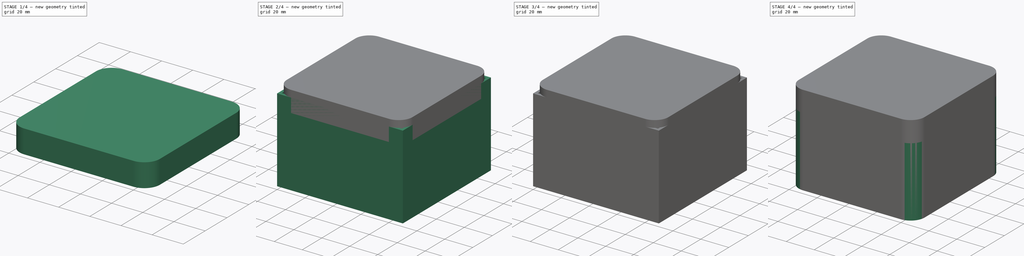
[diagram: build sequence overview — one tinted view per stage of 4, left to right]
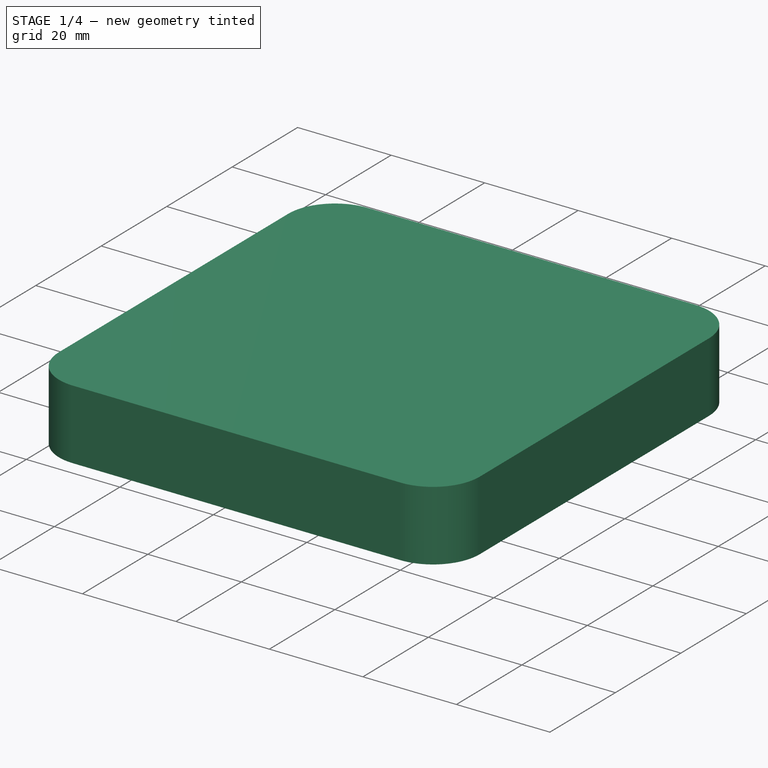
[diagram: stage 1 of 4 — iso view after this stage's code; geometry added in this stage tinted green]
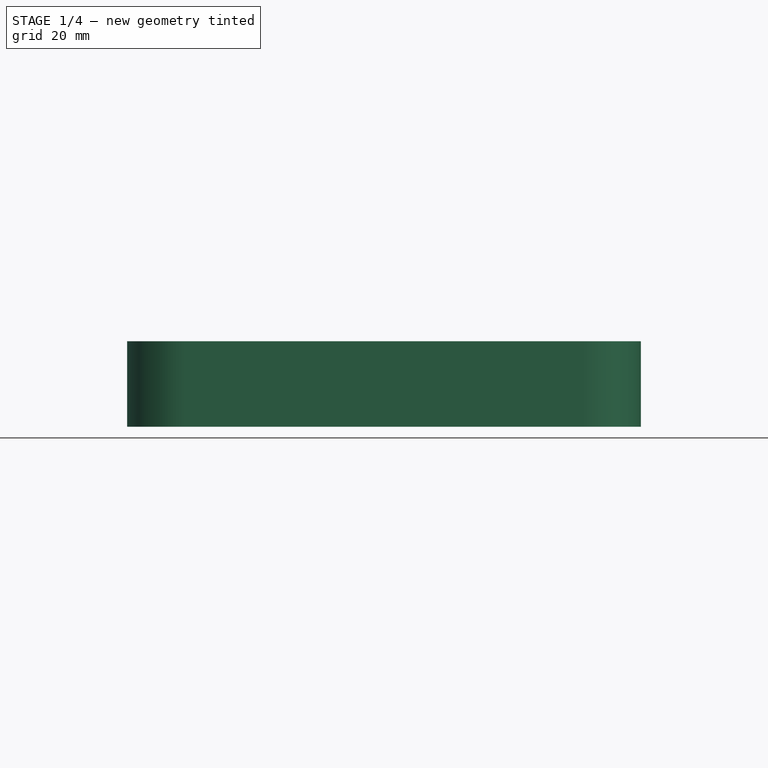
[diagram: stage 1 of 4 — front view after this stage's code; geometry added in this stage tinted green]
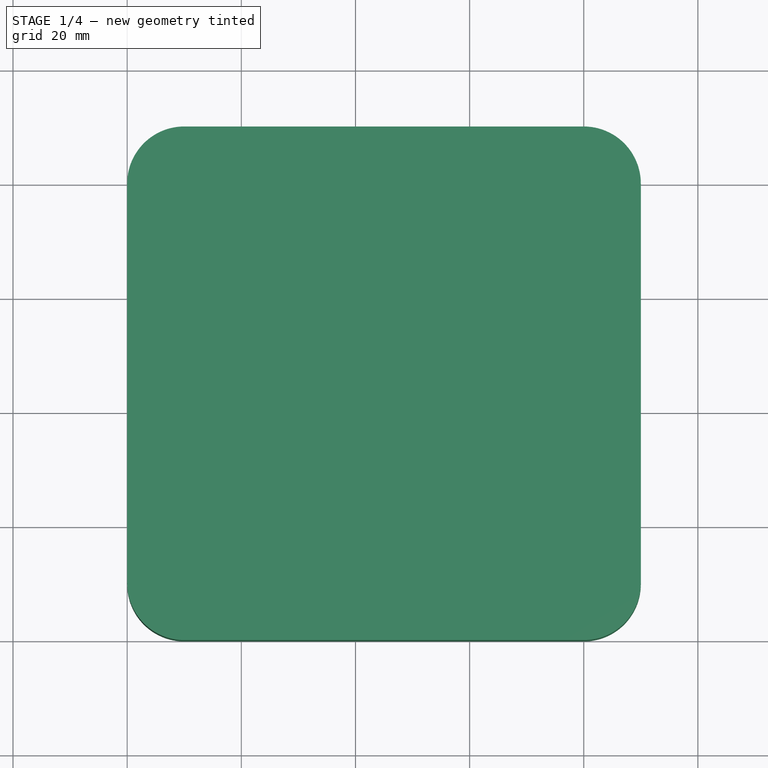
[diagram: stage 1 of 4 — top view after this stage's code; geometry added in this stage tinted green]
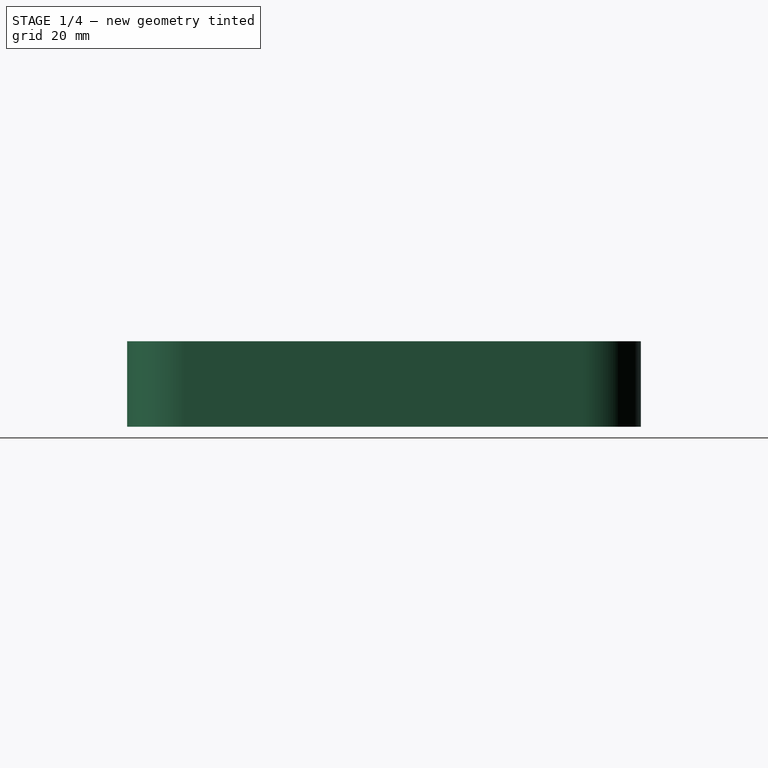
[diagram: stage 1 of 4 — right view after this stage's code; geometry added in this stage tinted green]
FCSTD DOCUMENT  (FreeCAD 0.18R16131 (Git))
Label: Caja QX65
License: All rights reserved
LicenseURL: http://en.wikipedia.org/wiki/All_rights_reserved
objects: Sketcher::SketchObject×4, PartDesign::Pocket×4, PartDesign::AdditiveBox×2, PartDesign::Fillet×2, PartDesign::Body×2, App::Part×2, PartDesign::SubtractiveBox×1, PartDesign::Thickness×1
note: 23 computed .brp shape members not serialized (recipe doc carries the construction recipe); baked Part::Feature solids carry a one-line shape summary decoded from their .brp

FEATURE [PartDesign::Body] Body
  Group = -> [Box,Sketch,Sketch001,Box001,Pocket,Pocket001,Sketch002,Pocket002,Sketch003,Pocket003,Fillet]
  Origin = -> Origin001
  Tip = -> Fillet
FEATURE [App::Part] Part  label="Caja cx65"
  Group = -> [Body]
  Origin = -> Origin
FEATURE [PartDesign::AdditiveBox] Box002
  AttacherType = Attacher::AttachEngine3D
  AttachmentOffset = pos=(0,0,50) rot=(0,0,1;0rad)
  Height = 15
  Length = 90
  MapMode = 2
  Placement = pos=(0,0,50) rot=(0,0,1;0rad)
  Support = -> [X_Axis003]
  Width = 90
FEATURE [PartDesign::Fillet] Fillet001
  Base = -> Box002 [Edge1,Edge5,Edge7,Edge3]
  BaseFeature = -> Box002
  Placement = pos=(0,0,50) rot=(0,0,1;0rad)
  Radius = 10
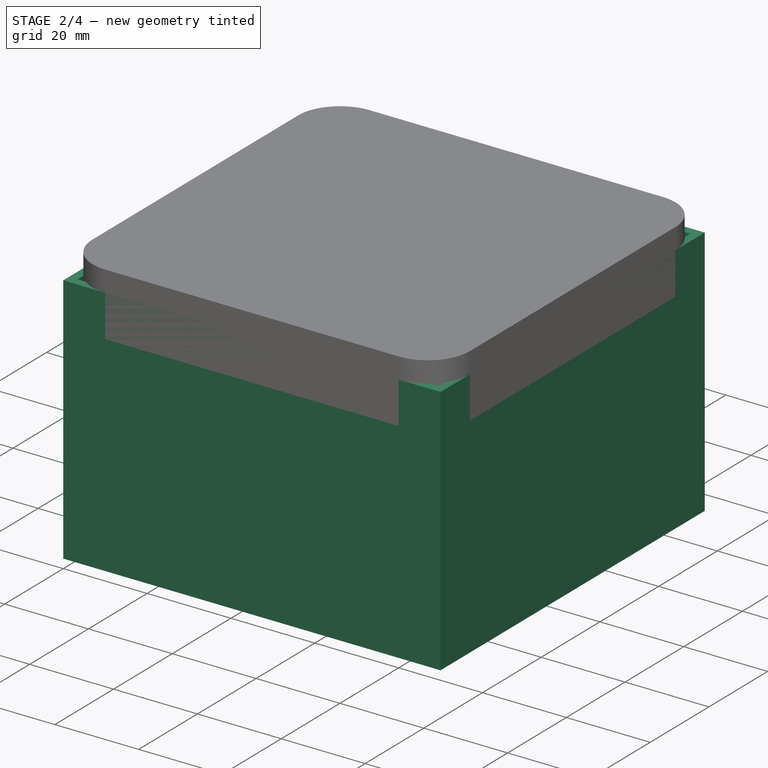
[diagram: stage 2 of 4 — iso view after this stage's code; geometry added in this stage tinted green]
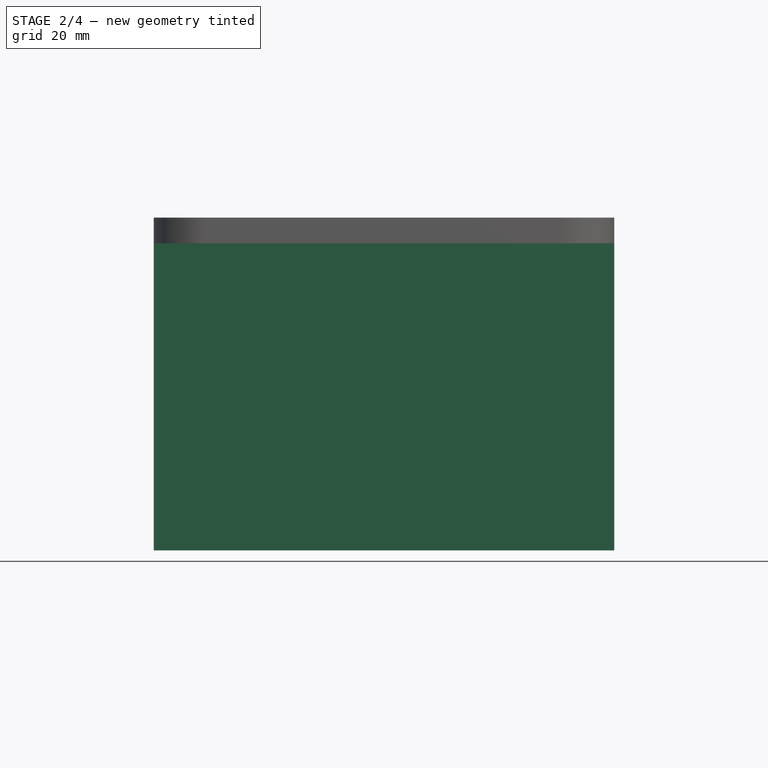
[diagram: stage 2 of 4 — front view after this stage's code; geometry added in this stage tinted green]
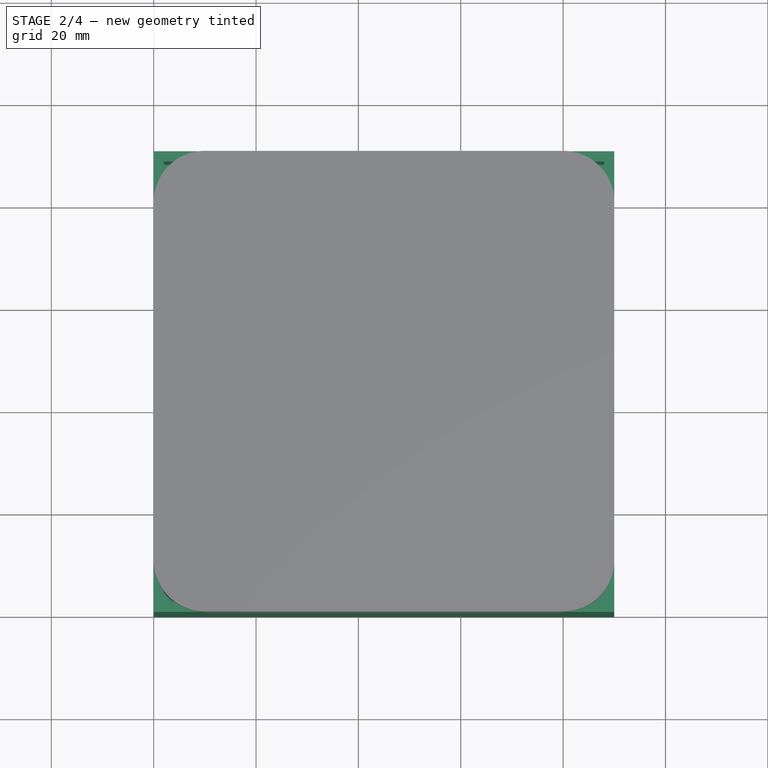
[diagram: stage 2 of 4 — top view after this stage's code; geometry added in this stage tinted green]
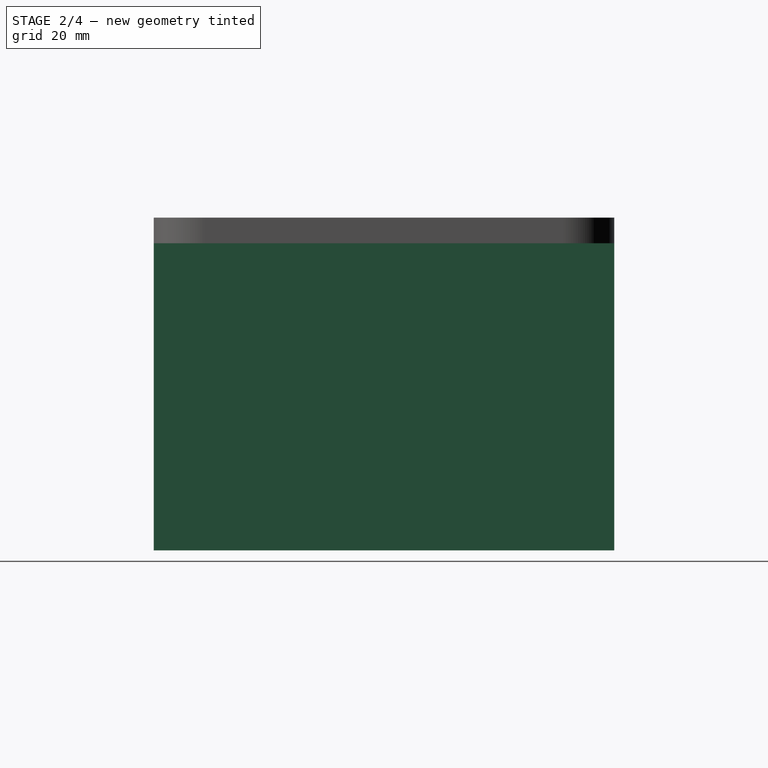
[diagram: stage 2 of 4 — right view after this stage's code; geometry added in this stage tinted green]
FEATURE [PartDesign::AdditiveBox] Box
  AttacherType = Attacher::AttachEngine3D
  Height = 60
  Length = 90
  Width = 90
FEATURE [PartDesign::SubtractiveBox] Box001
  AttacherType = Attacher::AttachEngine3D
  AttachmentOffset = pos=(2,2,-36) rot=(0,0,1;0rad)
  BaseFeature = -> Box
  Height = 36
  Length = 86
  MapMode = 5
  Placement = pos=(2,2,24) rot=(0,0,1;0rad)
  Support = -> [Box]
  Width = 86
FEATURE [PartDesign::Thickness] Thickness
  Base = -> Fillet001 [Face5]
  BaseFeature = -> Fillet001
  Join = 0
  Mode = 0
  Reversed = true
  Value = 0.5
FEATURE [PartDesign::Body] Body001
  Group = -> [Box002,Fillet001,Thickness]
  Origin = -> Origin003
  Placement = pos=(0,0,30) rot=(0,0,1;0rad)
  Tip = -> Thickness
FEATURE [App::Part] Part001  label="Tapa"
  Group = -> [Body001]
  Origin = -> Origin002
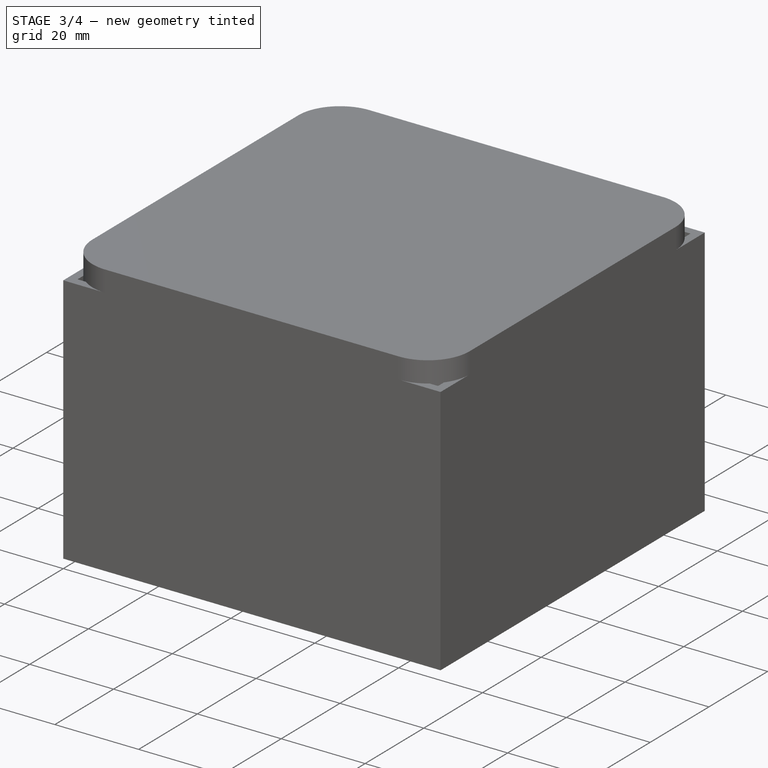
[diagram: stage 3 of 4 — iso view after this stage's code; geometry added in this stage tinted green]
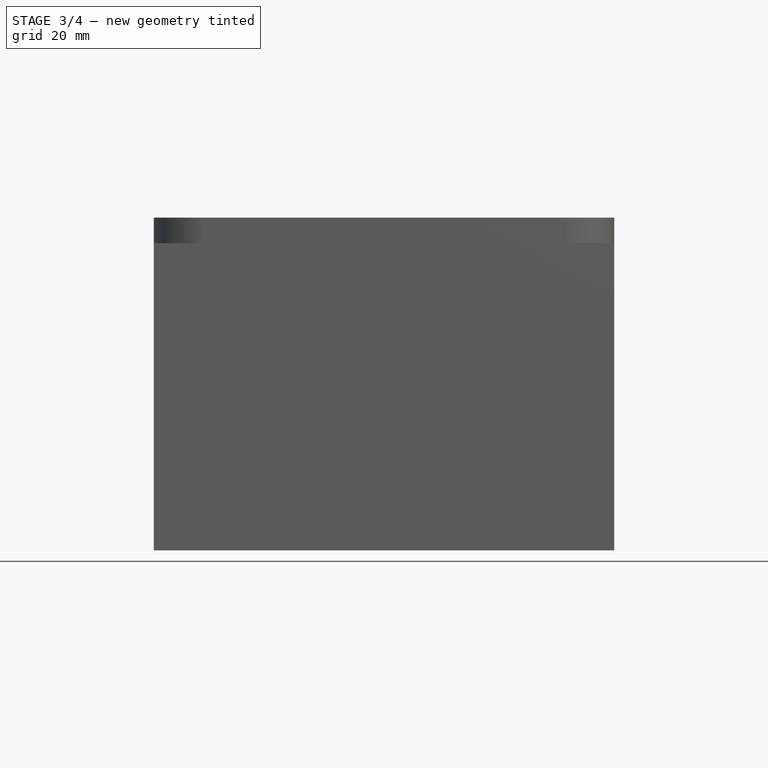
[diagram: stage 3 of 4 — front view after this stage's code; geometry added in this stage tinted green]
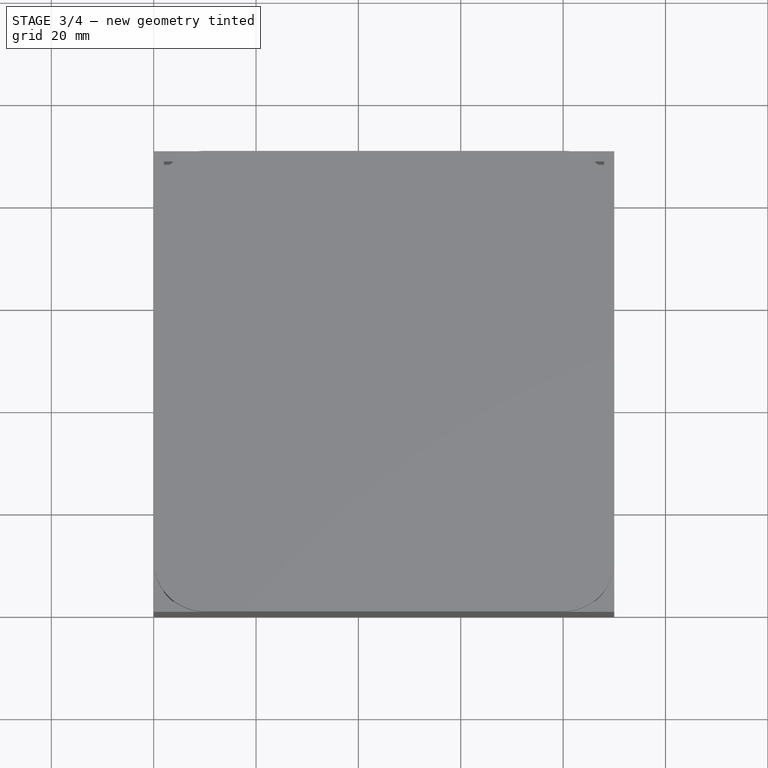
[diagram: stage 3 of 4 — top view after this stage's code; geometry added in this stage tinted green]
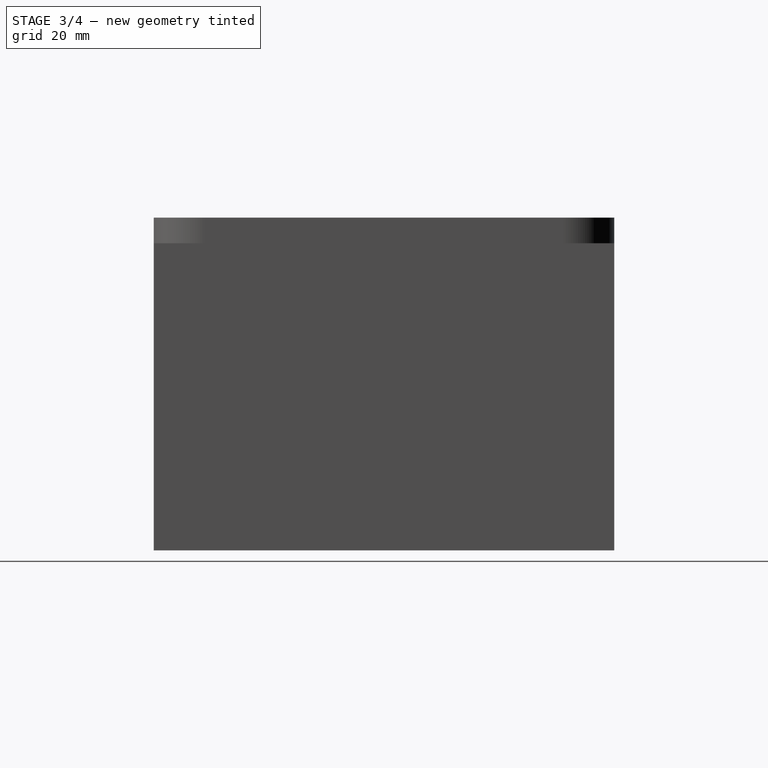
[diagram: stage 3 of 4 — right view after this stage's code; geometry added in this stage tinted green]
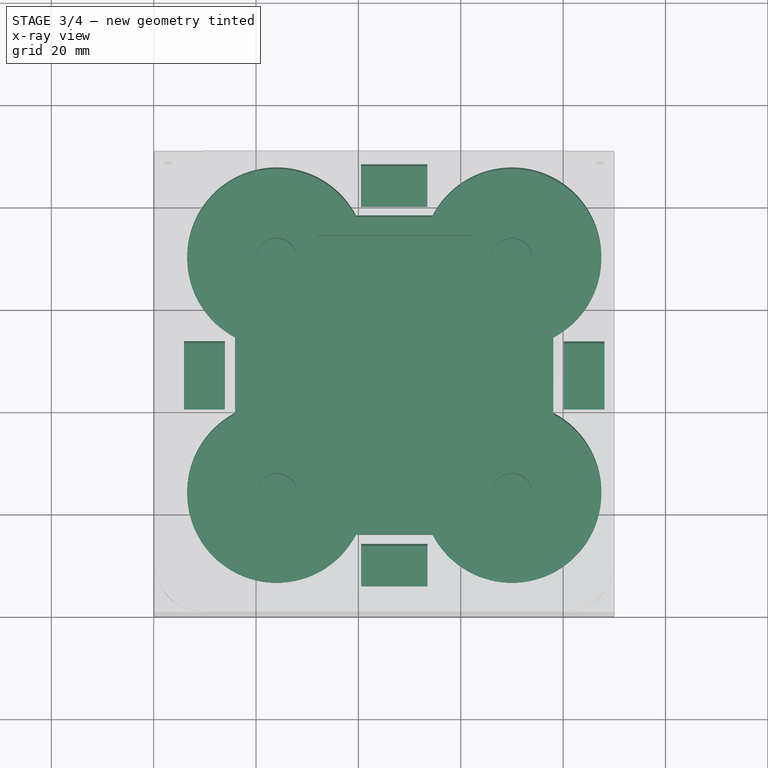
[diagram: stage 3 of 4 — x-ray composite at the top view; earlier geometry ghosted, this stage's added geometry solid]
FEATURE [Sketcher::SketchObject] Sketch
  AttachmentOffset = pos=(45,45,0) rot=(0,0,1;0rad)
  MapMode = 5
  Placement = pos=(47,47,24) rot=(0,0,1;0rad)
  Support = -> [Box001]
  sketch-geometry (13):
    g0: GeomPoint X=-22.981 Y=22.981 Z=0
    g1: GeomPoint X=22.981 Y=22.981 Z=0
    g2: GeomPoint X=-22.981 Y=-22.981 Z=0
    g3: GeomPoint X=22.981 Y=-22.981 Z=0
    g4: ArcOfCircle CenterX=-22.981 CenterY=22.981 CenterZ=0 NormalX=0 NormalY=0 NormalZ=1 AngleXU=0 Radius=17.5 StartAngle=0.482646 EndAngle=4.22974
    g5: ArcOfCircle CenterX=22.981 CenterY=22.981 CenterZ=0 NormalX=0 NormalY=0 NormalZ=1 AngleXU=0 Radius=17.5 StartAngle=5.19504 EndAngle=8.94213
    g6: ArcOfCircle CenterX=22.981 CenterY=-22.981 CenterZ=0 NormalX=0 NormalY=0 NormalZ=1 AngleXU=0 Radius=17.5 StartAngle=3.62424 EndAngle=7.37134
    g7: ArcOfCircle CenterX=-22.981 CenterY=-22.981 CenterZ=0 NormalX=0 NormalY=0 NormalZ=1 AngleXU=0 Radius=17.5 StartAngle=2.05344 EndAngle=5.80054
    g8: LineSegment [constr] StartX=0 StartY=0 StartZ=0 EndX=-22.981 EndY=22.981 EndZ=0
    g9: LineSegment StartX=7.48 StartY=-31.1032 StartZ=0 EndX=-7.48 EndY=-31.1032 EndZ=0
    g10: LineSegment StartX=-31.1032 StartY=7.48 StartZ=0 EndX=-31.1032 EndY=-7.48 EndZ=0
    g11: LineSegment StartX=31.1032 StartY=7.48 StartZ=0 EndX=31.1032 EndY=-7.48 EndZ=0
    g12: LineSegment StartX=-7.48 StartY=31.1032 StartZ=0 EndX=7.48 EndY=31.1032 EndZ=0
  constraints (32):
    c: Symmetric(g2,g1,g-1)
    c: Symmetric(g3,g0,g-1)
    c: Symmetric(g1,g3,g-1)
    c: Distance(g0,g3) = 65
    c: Coincident(g4,g0)
    c: Diameter(g4) = 35
    c: Equal(g4,g5) = 35
    c: Coincident(g5,g1)
    c: Equal(g4,g6) = 35
    c: Coincident(g6,g3)
    c: Equal(g4,g7) = 35
    c: Coincident(g7,g2)
    c: Symmetric(g0,g2,g-1)
    c: Coincident(g8,g-1)
    c: Coincident(g8,g0)
    c: Angle(g-1,g8) = 2.35619
    c: Horizontal(g9)
    c: Coincident(g9,g7)
    c: Coincident(g9,g6)
    c: DistanceX(g9,g9) = 14.96
    c: Coincident(g10,g4)
    c: Coincident(g10,g7)
    c: Vertical(g10)
    c: Coincident(g11,g5)
    c: Coincident(g11,g6)
    c: Vertical(g11)
    c: Coincident(g12,g4)
    c: Coincident(g12,g5)
    c: Horizontal(g12)
    c: Equal(g9,g10)
    c: Equal(g10,g12)
    c: Equal(g12,g11)
FEATURE [PartDesign::Pocket] Pocket
  BaseFeature = -> Box001
  Length = 16.5
  Length2 = 100
  Placement = pos=(2,2,24) rot=(0,0,1;0rad)
  Profile = -> Sketch
  Type = 0
FEATURE [Sketcher::SketchObject] Sketch001
  MapMode = 5
  Placement = pos=(2,2,7.5) rot=(0,0,1;0rad)
  Support = -> [Pocket]
  sketch-geometry (4):
    g0: Circle CenterX=22.019 CenterY=67.981 CenterZ=0 NormalX=0 NormalY=0 NormalZ=1 AngleXU=0 Radius=4
    g1: Circle CenterX=67.981 CenterY=67.981 CenterZ=0 NormalX=0 NormalY=0 NormalZ=1 AngleXU=0 Radius=4
    g2: Circle CenterX=22.019 CenterY=22.019 CenterZ=0 NormalX=0 NormalY=0 NormalZ=1 AngleXU=0 Radius=4
    g3: Circle CenterX=67.981 CenterY=22.019 CenterZ=0 NormalX=0 NormalY=0 NormalZ=1 AngleXU=0 Radius=4
  constraints (4):
    c: Diameter(g0) = 8
    c: Equal(g0,g1) = 8
    c: Equal(g0,g2) = 8
    c: Equal(g0,g3) = 8
FEATURE [PartDesign::Pocket] Pocket001
  BaseFeature = -> Pocket
  Length = 6
  Length2 = 100
  Placement = pos=(2,2,24) rot=(0,0,1;0rad)
  Profile = -> Sketch001
  Type = 0
FEATURE [Sketcher::SketchObject] Sketch002
  ExternalGeometry = -> [Pocket001]
  MapMode = 5
  Placement = pos=(2,2,24) rot=(0,0,1;0rad)
  Support = -> [Pocket001]
  sketch-geometry (20):
    g0: LineSegment StartX=38.48 StartY=86.1032 StartZ=0 EndX=51.48 EndY=86.1032 EndZ=0
    g1: LineSegment StartX=51.48 StartY=86.1032 StartZ=0 EndX=51.48 EndY=78.1032 EndZ=0
    g2: LineSegment StartX=51.48 StartY=78.1032 StartZ=0 EndX=38.48 EndY=78.1032 EndZ=0
    g3: LineSegment StartX=38.48 StartY=78.1032 StartZ=0 EndX=38.48 EndY=86.1032 EndZ=0
    g4: LineSegment StartX=38.52 StartY=11.8968 StartZ=0 EndX=51.52 EndY=11.8968 EndZ=0
    g5: LineSegment StartX=51.52 StartY=11.8968 StartZ=0 EndX=51.52 EndY=3.89684 EndZ=0
    g6: LineSegment StartX=51.52 StartY=3.89684 StartZ=0 EndX=38.52 EndY=3.89684 EndZ=0
    g7: LineSegment StartX=38.52 StartY=3.89684 StartZ=0 EndX=38.52 EndY=11.8968 EndZ=0
    g8: LineSegment StartX=3.89684 StartY=51.52 StartZ=0 EndX=11.8968 EndY=51.52 EndZ=0
    g9: LineSegment StartX=11.8968 StartY=38.52 StartZ=0 EndX=3.89684 EndY=38.52 EndZ=0
    g10: LineSegment StartX=3.89684 StartY=38.52 StartZ=0 EndX=3.89684 EndY=51.52 EndZ=0
    g11: LineSegment StartX=11.8968 StartY=51.52 StartZ=0 EndX=11.8968 EndY=38.52 EndZ=0
    g12: LineSegment StartX=78.1032 StartY=38.48 StartZ=0 EndX=86.1032 EndY=38.48 EndZ=0
    g13: LineSegment StartX=86.1032 StartY=51.48 StartZ=0 EndX=78.1032 EndY=51.48 EndZ=0
    g14: LineSegment StartX=78.1032 StartY=51.48 StartZ=0 EndX=78.1032 EndY=38.48 EndZ=0
    g15: LineSegment StartX=86.1032 StartY=38.48 StartZ=0 EndX=86.1032 EndY=51.48 EndZ=0
    g16: LineSegment StartX=30 StartY=72.5032 StartZ=0 EndX=60 EndY=72.5032 EndZ=0
    g17: LineSegment StartX=60 StartY=72.5032 StartZ=0 EndX=60 EndY=17.5032 EndZ=0
    g18: LineSegment StartX=60 StartY=17.5032 StartZ=0 EndX=30 EndY=17.5032 EndZ=0
    g19: LineSegment StartX=30 StartY=17.5032 StartZ=0 EndX=30 EndY=72.5032 EndZ=0
  constraints (60):
    c: Coincident(g0,g1)
    c: Coincident(g1,g2)
    c: Coincident(g2,g3)
    c: Coincident(g3,g0)
    c: Horizontal(g0)
    c: Horizontal(g2)
    c: Vertical(g1)
    c: Vertical(g3)
    c: DistanceX(g2,g2) = 13
    c: DistanceY(g1,g1) = 8
    c: DistanceX(g1,g-5) = 1
    c: DistanceY(g-5,g1) = 2
    c: Coincident(g4,g5)
    c: Coincident(g5,g6)
    c: Coincident(g6,g7)
    c: Coincident(g7,g4)
    c: Horizontal(g4)
    c: Horizontal(g6)
    c: Vertical(g5)
    c: Vertical(g7)
    c: Equal(g2,g6) = 13
    c: Equal(g1,g5) = 8
    c: Coincident(g9,g10)
    c: Coincident(g10,g8)
    c: Horizontal(g8)
    c: Horizontal(g9)
    c: Vertical(g10)
    c: Coincident(g11,g9)
    c: Vertical(g11)
    c: DistanceY(g11,g11) = 13
    c: Coincident(g8,g11)
    c: DistanceX(g8,g8) = 8
    c: Coincident(g13,g14)
    c: Coincident(g14,g12)
    c: Horizontal(g12)
    c: Horizontal(g13)
    c: Vertical(g14)
    c: Coincident(g15,g13)
    c: Vertical(g15)
    c: Equal(g11,g15) = 13
    c: Coincident(g12,g15)
    c: Equal(g8,g12) = 8
    c: DistanceX(g-8,g12) = 2
    c: DistanceY(g13,g-8) = 1
    c: DistanceY(g4,g-6) = 2
    c: DistanceX(g-6,g4) = 1
    c: DistanceY(g-7,g9) = 1
    c: DistanceX(g9,g-7) = 2
    c: Coincident(g16,g17)
    c: Coincident(g17,g18)
    c: Coincident(g18,g19)
    c: Coincident(g19,g16)
    c: Horizontal(g16)
    c: Horizontal(g18)
    c: Vertical(g17)
    c: Vertical(g19)
    c: DistanceY(g19,g19) = 55
    c: DistanceX(g18,g18) = 30
    c: DistanceY(g16,g-5) = 3.6
    c: DistanceX(g18,g-6) = 7.52
FEATURE [PartDesign::Pocket] Pocket002
  BaseFeature = -> Pocket001
  Length = 22.5
  Length2 = 100
  Placement = pos=(2,2,24) rot=(0,0,1;0rad)
  Profile = -> Sketch002
  Type = 0
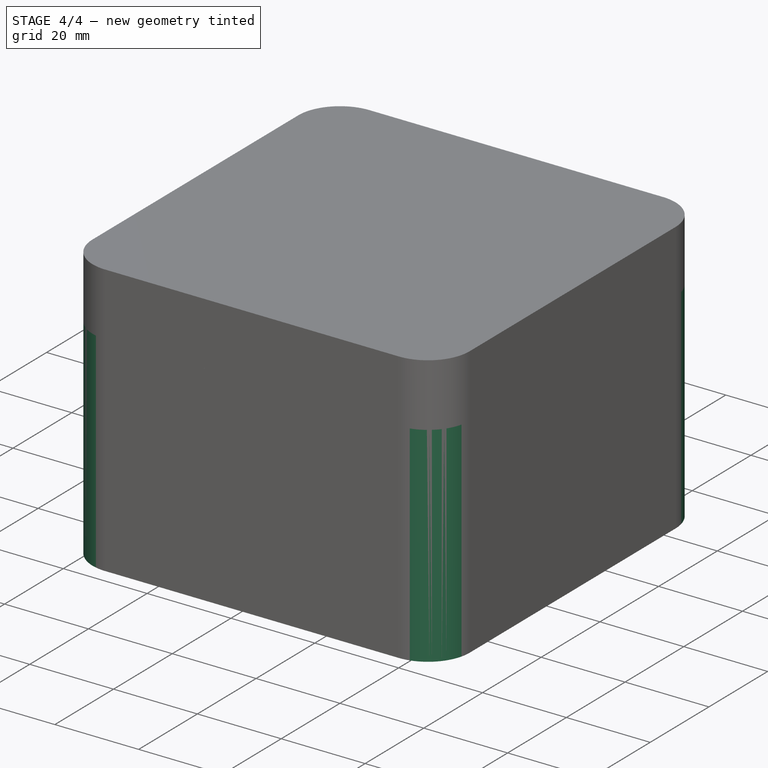
[diagram: stage 4 of 4 — iso view after this stage's code; geometry added in this stage tinted green]
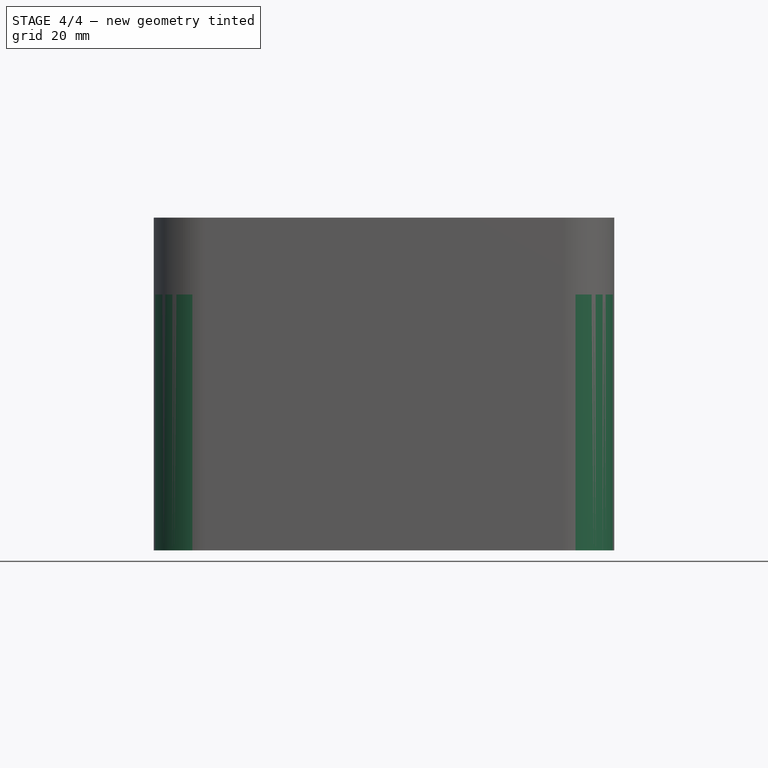
[diagram: stage 4 of 4 — front view after this stage's code; geometry added in this stage tinted green]
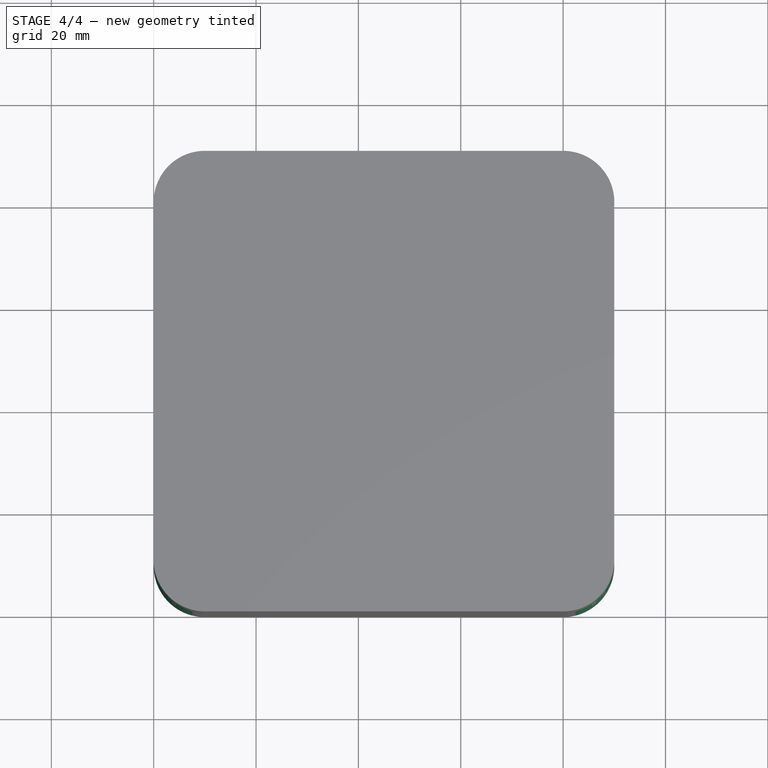
[diagram: stage 4 of 4 — top view after this stage's code; geometry added in this stage tinted green]
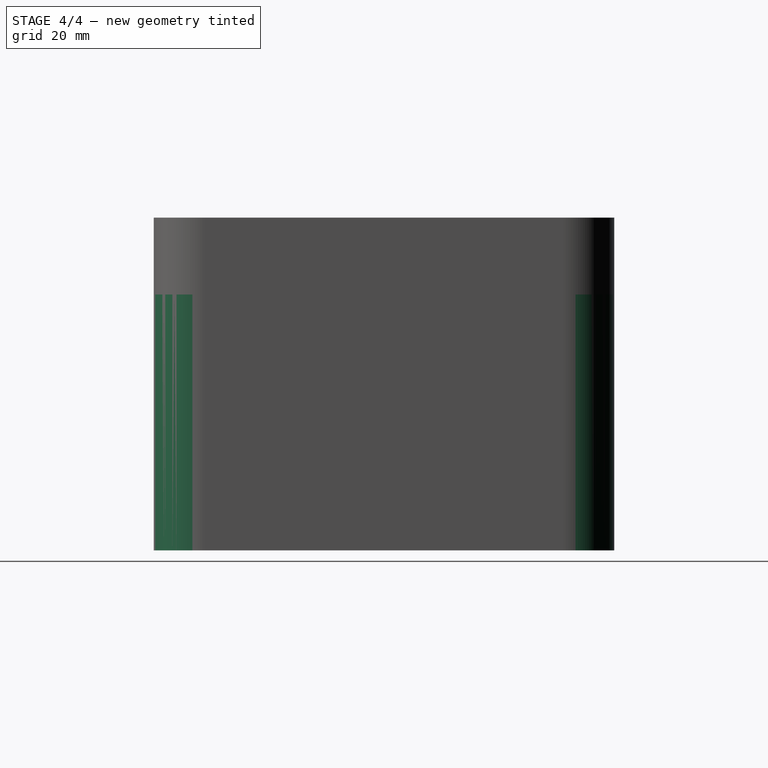
[diagram: stage 4 of 4 — right view after this stage's code; geometry added in this stage tinted green]
FEATURE [Sketcher::SketchObject] Sketch003
  ExternalGeometry = -> [Pocket002]
  MapMode = 5
  Placement = pos=(2,2,60) rot=(0,0,1;0rad)
  Support = -> [Pocket002]
  sketch-geometry (8):
    g0: LineSegment StartX=88 StartY=88 StartZ=0 EndX=-2 EndY=88 EndZ=0
    g1: LineSegment StartX=-2 StartY=88 StartZ=0 EndX=-2 EndY=-2 EndZ=0
    g2: LineSegment StartX=-2 StartY=-2 StartZ=0 EndX=88 EndY=-2 EndZ=0
    g3: LineSegment StartX=88 StartY=-2 StartZ=0 EndX=88 EndY=88 EndZ=0
    g4: LineSegment StartX=-1.5 StartY=-1.5 StartZ=0 EndX=87.5 EndY=-1.5 EndZ=0
    g5: LineSegment StartX=87.5 StartY=-1.5 StartZ=0 EndX=87.5 EndY=87.5 EndZ=0
    g6: LineSegment StartX=87.5 StartY=87.5 StartZ=0 EndX=-1.5 EndY=87.5 EndZ=0
    g7: LineSegment StartX=-1.5 StartY=87.5 StartZ=0 EndX=-1.5 EndY=-1.5 EndZ=0
  constraints (22):
    c: Coincident(g0,g1)
    c: Coincident(g1,g2)
    c: Coincident(g2,g3)
    c: Coincident(g3,g0)
    c: Horizontal(g0)
    c: Horizontal(g2)
    c: Vertical(g1)
    c: Vertical(g3)
    c: Coincident(g0,g-4)
    c: Coincident(g1,g-3)
    c: Coincident(g4,g5)
    c: Coincident(g5,g6)
    c: Coincident(g6,g7)
    c: Coincident(g7,g4)
    c: Horizontal(g4)
    c: Vertical(g5)
    c: DistanceY(g1,g4) = 0.5
    c: DistanceX(g5,g0) = 0.5
    c: Horizontal(g6)
    c: DistanceY(g5,g0) = 0.5
    c: DistanceX(g1,g4) = 0.5
    c: DistanceX(g0,g6) = 0.5
FEATURE [PartDesign::Pocket] Pocket003
  BaseFeature = -> Pocket002
  Length = 10
  Length2 = 100
  Placement = pos=(2,2,24) rot=(0,0,1;0rad)
  Profile = -> Sketch003
  Type = 0
FEATURE [PartDesign::Fillet] Fillet
  Base = -> Pocket003 [Edge35,Edge30,Edge29,Edge37,Edge18,Edge1,Edge5,Edge22,Edge20,Edge14,Edge17,Edge3]
  BaseFeature = -> Pocket003
  Placement = pos=(2,2,24) rot=(0,0,1;0rad)
  Radius = 10
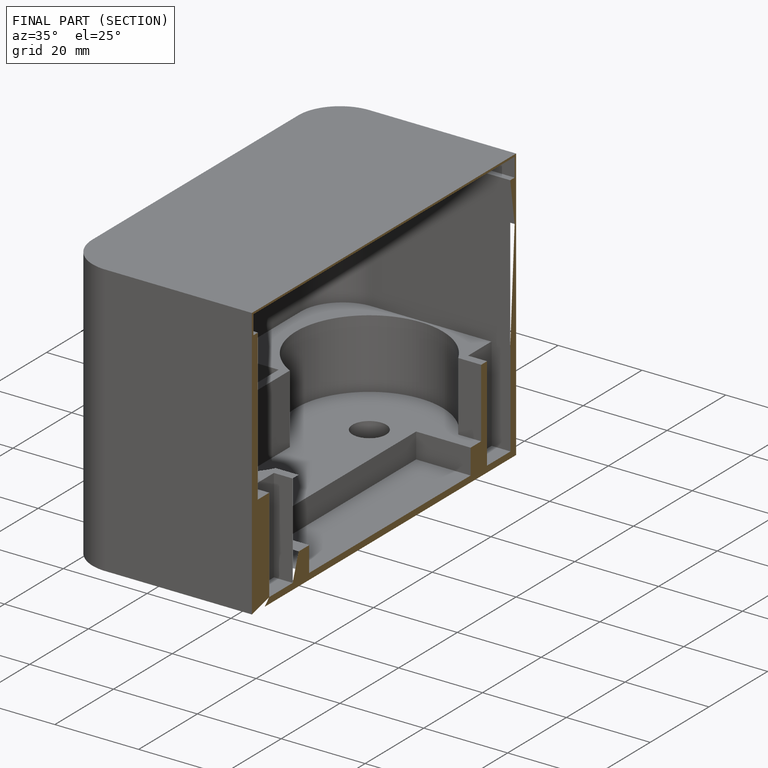
[diagram: finished part — half-section view (interior)]
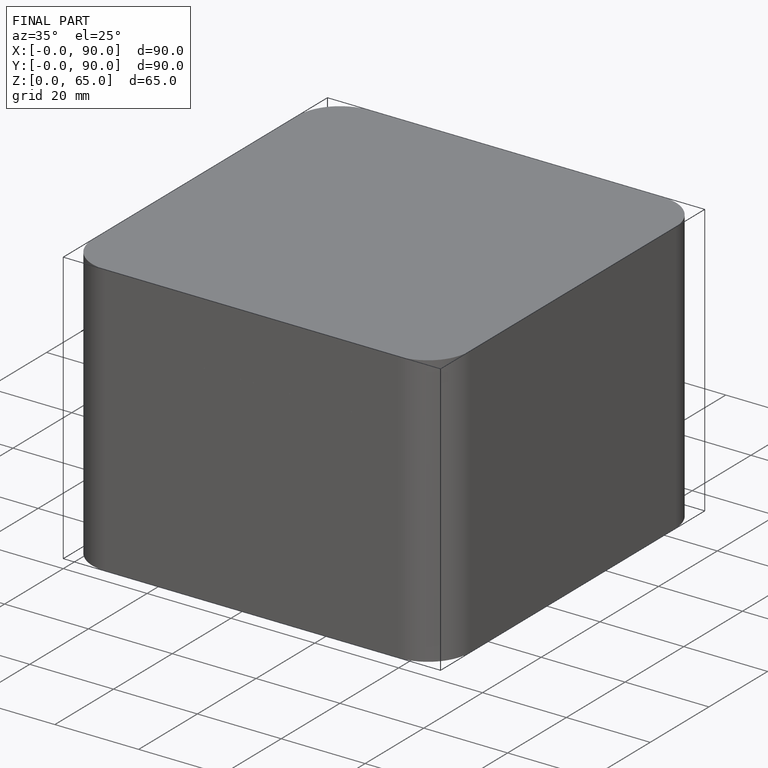
[diagram: finished part — iso view with bounding-box wireframe]
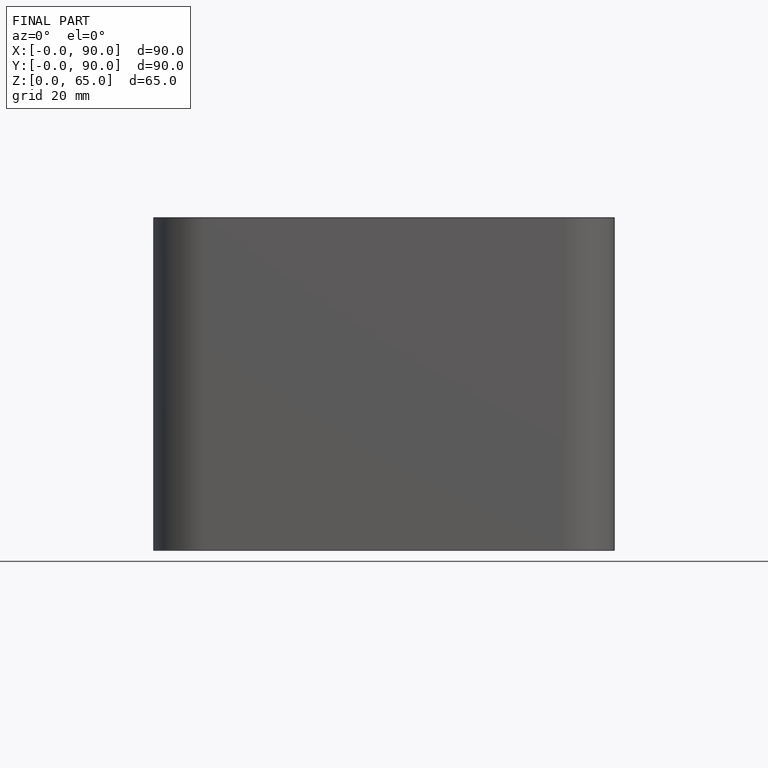
[diagram: finished part — front view with bounding-box wireframe]
